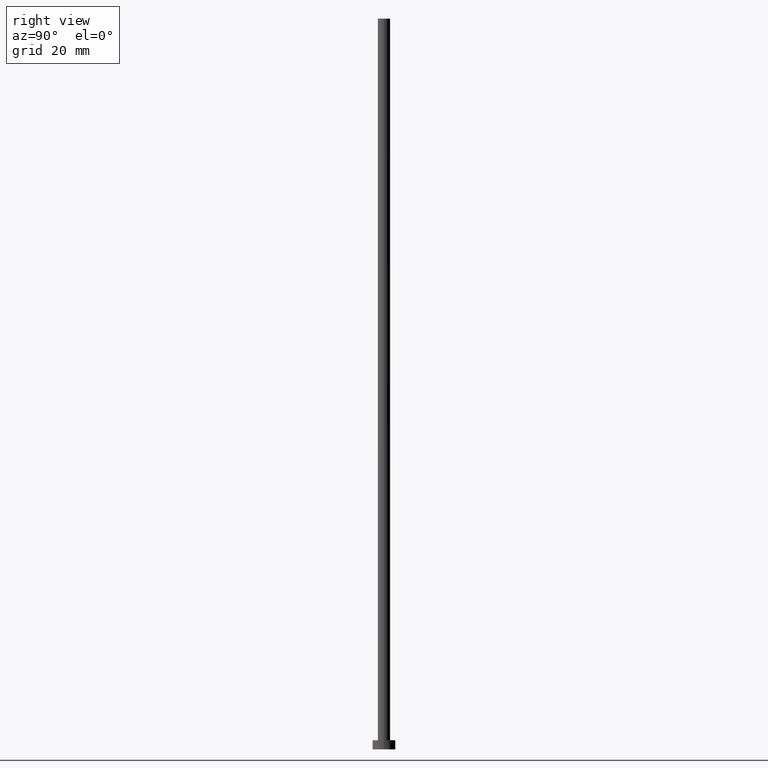
[diagram: clean part render]
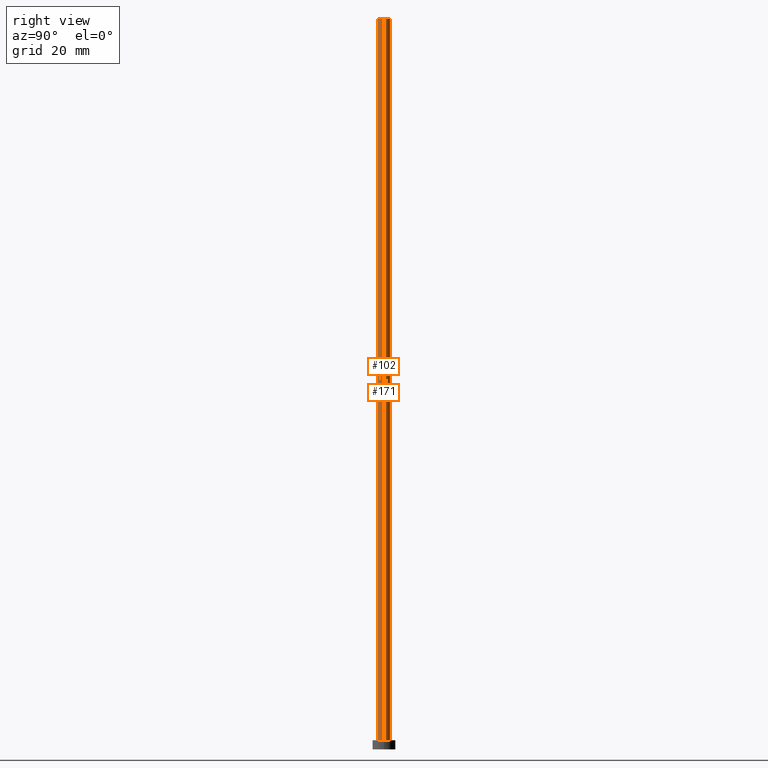
[diagram: same view with one multi-face feature highlighted, each face labeled with its STEP entity id]
A machine part, right view. The highlighted faces form ONE feature: a constant-radius fillet chain: 2 tangent blend faces with common blend radius 1.35 mm. The faces share edges in the B-rep.
Their STEP definitions:
[1] entity #102 (Cylinder):
#1 = ORIENTED_EDGE ( 'NONE', *, *, #210, .F. ) ;
#14 = EDGE_CURVE ( 'NONE', #46, #37, #245, .T. ) ;
#15 = CIRCLE ( 'NONE', #23, 1.350000000000000089 ) ;
#23 = AXIS2_PLACEMENT_3D ( 'NONE', #111, #254, #130 ) ;
#25 = LINE ( 'NONE', #62, #105 ) ;
#27 = DIRECTION ( 'NONE',  ( -0.000000000000000000, -0.000000000000000000, -1.000000000000000000 ) ) ;
#37 = VERTEX_POINT ( 'NONE', #84 ) ;
#46 = VERTEX_POINT ( 'NONE', #225 ) ;
#50 = VERTEX_POINT ( 'NONE', #240 ) ;
#58 = DIRECTION ( 'NONE',  ( 0.000000000000000000, 0.000000000000000000, 1.000000000000000000 ) ) ;
#62 = CARTESIAN_POINT ( 'NONE',  ( 1.350000000000000089, 1.653273178848926867E-16, 160.0000000000000000 ) ) ;
#65 = DIRECTION ( 'NONE',  ( -0.000000000000000000, -0.000000000000000000, -1.000000000000000000 ) ) ;
#84 = CARTESIAN_POINT ( 'NONE',  ( -1.350000000000000089, 0.000000000000000000, 2.000000000000000000 ) ) ;
#92 = DIRECTION ( 'NONE',  ( 1.000000000000000000, 0.000000000000000000, 0.000000000000000000 ) ) ;
#102 = ADVANCED_FACE ( 'NONE', ( #217 ), #174, .T. ) ;
#105 = VECTOR ( 'NONE', #27, 1000.000000000000000 ) ;
#106 = AXIS2_PLACEMENT_3D ( 'NONE', #152, #58, #92 ) ;
#111 = CARTESIAN_POINT ( 'NONE',  ( 0.000000000000000000, 0.000000000000000000, 2.000000000000000000 ) ) ;
#117 = ORIENTED_EDGE ( 'NONE', *, *, #142, .F. ) ;
#129 = EDGE_CURVE ( 'NONE', #37, #50, #15, .T. ) ;
#130 = DIRECTION ( 'NONE',  ( 1.000000000000000000, 0.000000000000000000, 0.000000000000000000 ) ) ;
#142 = EDGE_CURVE ( 'NONE', #46, #158, #229, .T. ) ;
#146 = EDGE_LOOP ( 'NONE', ( #1, #117, #156, #182 ) ) ;
#150 = CARTESIAN_POINT ( 'NONE',  ( 0.000000000000000000, 0.000000000000000000, 160.0000000000000000 ) ) ;
#151 = AXIS2_PLACEMENT_3D ( 'NONE', #150, #215, #192 ) ;
#152 = CARTESIAN_POINT ( 'NONE',  ( 0.000000000000000000, 0.000000000000000000, 160.0000000000000000 ) ) ;
#156 = ORIENTED_EDGE ( 'NONE', *, *, #14, .T. ) ;
#158 = VERTEX_POINT ( 'NONE', #241 ) ;
#174 = CYLINDRICAL_SURFACE ( 'NONE', #151, 1.350000000000000089 ) ;
#182 = ORIENTED_EDGE ( 'NONE', *, *, #129, .T. ) ;
#183 = VECTOR ( 'NONE', #65, 1000.000000000000000 ) ;
#192 = DIRECTION ( 'NONE',  ( -1.000000000000000000, 0.000000000000000000, 0.000000000000000000 ) ) ;
#203 = CARTESIAN_POINT ( 'NONE',  ( -1.350000000000000089, 0.000000000000000000, 160.0000000000000000 ) ) ;
#210 = EDGE_CURVE ( 'NONE', #158, #50, #25, .T. ) ;
#215 = DIRECTION ( 'NONE',  ( -0.000000000000000000, -0.000000000000000000, -1.000000000000000000 ) ) ;
#217 = FACE_OUTER_BOUND ( 'NONE', #146, .T. ) ;
#225 = CARTESIAN_POINT ( 'NONE',  ( -1.350000000000000089, 0.000000000000000000, 160.0000000000000000 ) ) ;
#229 = CIRCLE ( 'NONE', #106, 1.350000000000000089 ) ;
#240 = CARTESIAN_POINT ( 'NONE',  ( 1.350000000000000089, 1.653273178848926867E-16, 2.000000000000000000 ) ) ;
#241 = CARTESIAN_POINT ( 'NONE',  ( 1.350000000000000089, 1.653273178848926867E-16, 160.0000000000000000 ) ) ;
#245 = LINE ( 'NONE', #203, #183 ) ;
#254 = DIRECTION ( 'NONE',  ( 0.000000000000000000, 0.000000000000000000, 1.000000000000000000 ) ) ;
[2] entity #171 (Cylinder):
#14 = EDGE_CURVE ( 'NONE', #46, #37, #245, .T. ) ;
#25 = LINE ( 'NONE', #62, #105 ) ;
#27 = DIRECTION ( 'NONE',  ( -0.000000000000000000, -0.000000000000000000, -1.000000000000000000 ) ) ;
#30 = CARTESIAN_POINT ( 'NONE',  ( 0.000000000000000000, 0.000000000000000000, 160.0000000000000000 ) ) ;
#31 = CIRCLE ( 'NONE', #71, 1.350000000000000089 ) ;
#37 = VERTEX_POINT ( 'NONE', #84 ) ;
#39 = EDGE_CURVE ( 'NONE', #158, #46, #31, .T. ) ;
#43 = AXIS2_PLACEMENT_3D ( 'NONE', #194, #94, #176 ) ;
#46 = VERTEX_POINT ( 'NONE', #225 ) ;
#50 = VERTEX_POINT ( 'NONE', #240 ) ;
#56 = EDGE_CURVE ( 'NONE', #50, #37, #167, .T. ) ;
#62 = CARTESIAN_POINT ( 'NONE',  ( 1.350000000000000089, 1.653273178848926867E-16, 160.0000000000000000 ) ) ;
#65 = DIRECTION ( 'NONE',  ( -0.000000000000000000, -0.000000000000000000, -1.000000000000000000 ) ) ;
#71 = AXIS2_PLACEMENT_3D ( 'NONE', #30, #247, #141 ) ;
#79 = ORIENTED_EDGE ( 'NONE', *, *, #56, .T. ) ;
#84 = CARTESIAN_POINT ( 'NONE',  ( -1.350000000000000089, 0.000000000000000000, 2.000000000000000000 ) ) ;
#94 = DIRECTION ( 'NONE',  ( -0.000000000000000000, -0.000000000000000000, -1.000000000000000000 ) ) ;
#105 = VECTOR ( 'NONE', #27, 1000.000000000000000 ) ;
#115 = ORIENTED_EDGE ( 'NONE', *, *, #39, .F. ) ;
#122 = CARTESIAN_POINT ( 'NONE',  ( 0.000000000000000000, 0.000000000000000000, 2.000000000000000000 ) ) ;
#131 = CYLINDRICAL_SURFACE ( 'NONE', #43, 1.350000000000000089 ) ;
#141 = DIRECTION ( 'NONE',  ( 1.000000000000000000, 0.000000000000000000, 0.000000000000000000 ) ) ;
#154 = FACE_OUTER_BOUND ( 'NONE', #163, .T. ) ;
#158 = VERTEX_POINT ( 'NONE', #241 ) ;
#163 = EDGE_LOOP ( 'NONE', ( #115, #180, #79, #218 ) ) ;
#167 = CIRCLE ( 'NONE', #243, 1.350000000000000089 ) ;
#171 = ADVANCED_FACE ( 'NONE', ( #154 ), #131, .T. ) ;
#176 = DIRECTION ( 'NONE',  ( -1.000000000000000000, 0.000000000000000000, 0.000000000000000000 ) ) ;
#180 = ORIENTED_EDGE ( 'NONE', *, *, #210, .T. ) ;
#183 = VECTOR ( 'NONE', #65, 1000.000000000000000 ) ;
#194 = CARTESIAN_POINT ( 'NONE',  ( 0.000000000000000000, 0.000000000000000000, 160.0000000000000000 ) ) ;
#203 = CARTESIAN_POINT ( 'NONE',  ( -1.350000000000000089, 0.000000000000000000, 160.0000000000000000 ) ) ;
#204 = DIRECTION ( 'NONE',  ( 0.000000000000000000, 0.000000000000000000, 1.000000000000000000 ) ) ;
#210 = EDGE_CURVE ( 'NONE', #158, #50, #25, .T. ) ;
#216 = DIRECTION ( 'NONE',  ( 1.000000000000000000, 0.000000000000000000, 0.000000000000000000 ) ) ;
#218 = ORIENTED_EDGE ( 'NONE', *, *, #14, .F. ) ;
#225 = CARTESIAN_POINT ( 'NONE',  ( -1.350000000000000089, 0.000000000000000000, 160.0000000000000000 ) ) ;
#240 = CARTESIAN_POINT ( 'NONE',  ( 1.350000000000000089, 1.653273178848926867E-16, 2.000000000000000000 ) ) ;
#241 = CARTESIAN_POINT ( 'NONE',  ( 1.350000000000000089, 1.653273178848926867E-16, 160.0000000000000000 ) ) ;
#243 = AXIS2_PLACEMENT_3D ( 'NONE', #122, #204, #216 ) ;
#245 = LINE ( 'NONE', #203, #183 ) ;
#247 = DIRECTION ( 'NONE',  ( 0.000000000000000000, 0.000000000000000000, 1.000000000000000000 ) ) ;